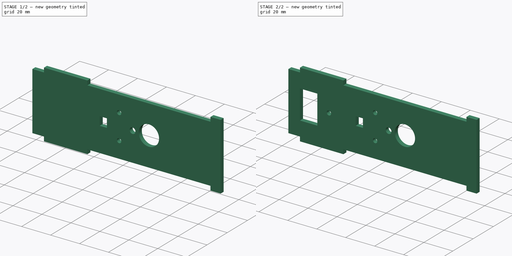
[diagram: build sequence overview — one tinted view per stage of 2, left to right]
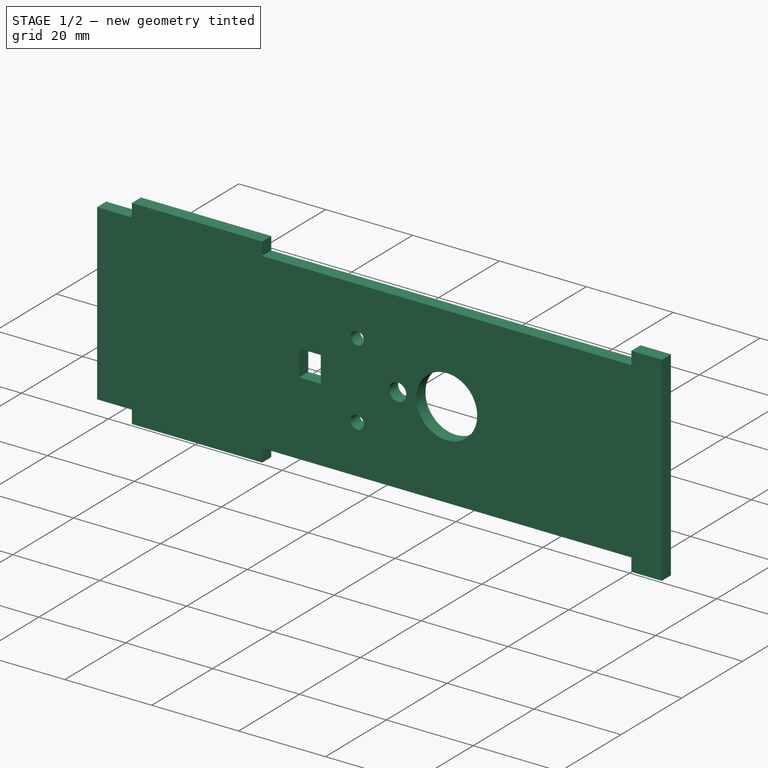
[diagram: stage 1 of 2 — iso view after this stage's code; geometry added in this stage tinted green]
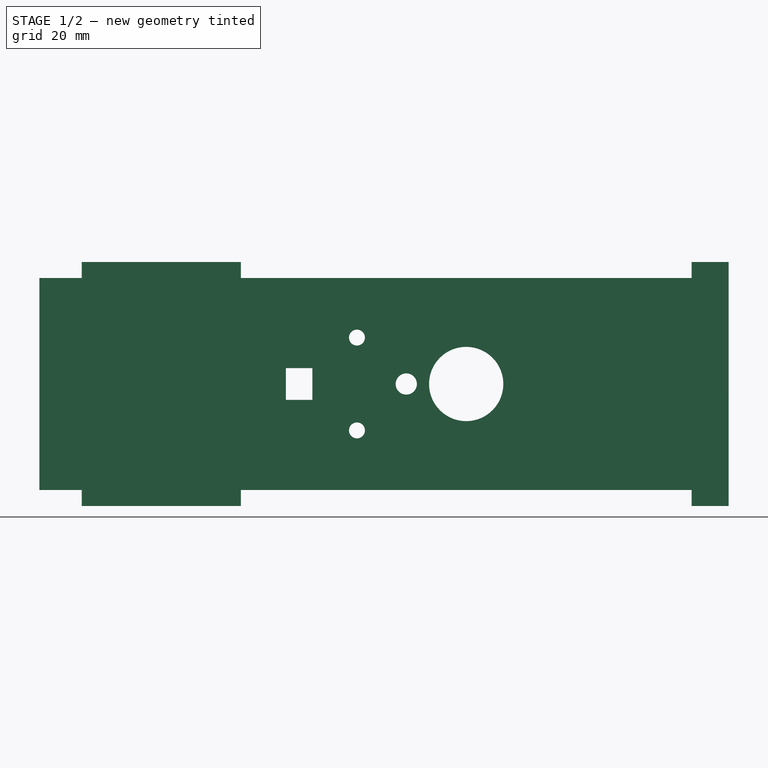
[diagram: stage 1 of 2 — front view after this stage's code; geometry added in this stage tinted green]
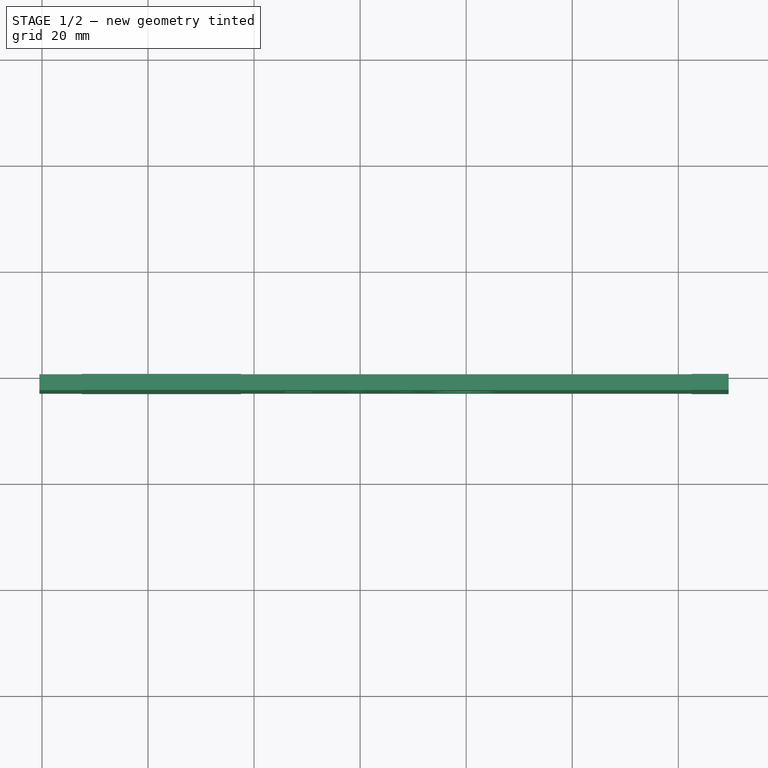
[diagram: stage 1 of 2 — top view after this stage's code; geometry added in this stage tinted green]
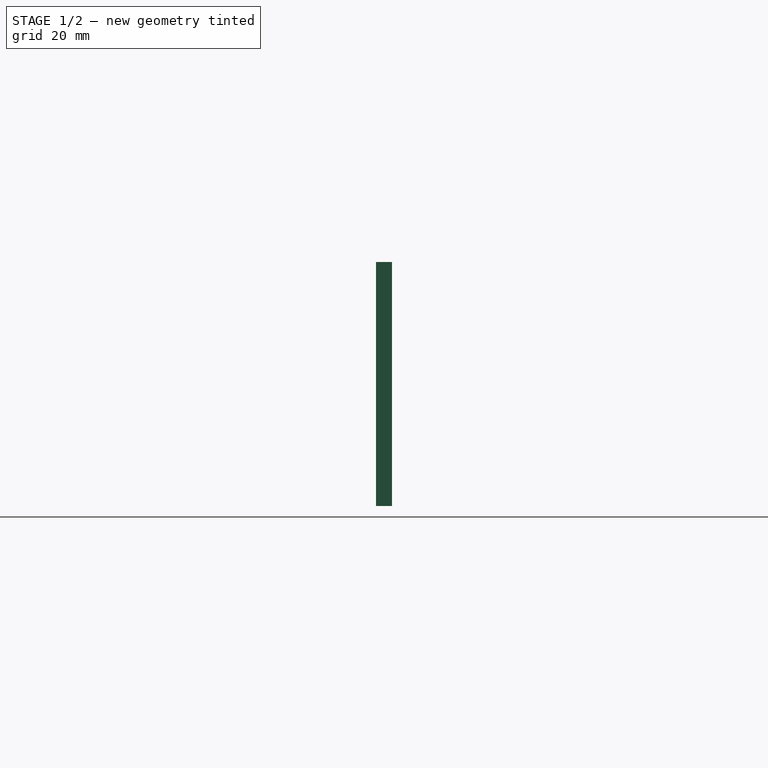
[diagram: stage 1 of 2 — right view after this stage's code; geometry added in this stage tinted green]
FCSTD DOCUMENT  (FreeCAD 0.15R4671 (Git))
Label: EduRoMAALaterales
License: CreativeCommons Attribution-ShareAlike
LicenseURL: http://creativecommons.org/licenses/by-sa/4.0/
objects: Sketcher::SketchObject×3, PartDesign::Pocket×2, Part::Part2DObjectPython×2, PartDesign::Pad×1, Part::FeaturePython×1
note: 12 computed .brp shape members not serialized (recipe doc carries the construction recipe); baked Part::Feature solids carry a one-line shape summary decoded from their .brp

FEATURE [Sketcher::SketchObject] Sketch012  label="SiluetaLateralSketch"
  Placement = pos=(0,0,0) rot=(1,0,0;1.5708rad)
  sketch-geometry (16):
    g0: LineSegment StartX=-80.5 StartY=43 StartZ=0 EndX=-72.5 EndY=43 EndZ=0
    g1: LineSegment StartX=-72.5 StartY=43 StartZ=0 EndX=-72.5 EndY=46 EndZ=0
    g2: LineSegment StartX=-72.5 StartY=46 StartZ=0 EndX=-42.5 EndY=46 EndZ=0
    g3: LineSegment StartX=-42.5 StartY=46 StartZ=0 EndX=-42.5 EndY=43 EndZ=0
    g4: LineSegment StartX=-42.5 StartY=43 StartZ=0 EndX=42.5 EndY=43 EndZ=0
    g5: LineSegment StartX=42.5 StartY=43 StartZ=0 EndX=42.5 EndY=46 EndZ=0
    g6: LineSegment StartX=42.5 StartY=46 StartZ=0 EndX=49.5 EndY=46 EndZ=0
    g7: LineSegment StartX=49.5 StartY=46 StartZ=0 EndX=49.5 EndY=0 EndZ=0
    g8: LineSegment StartX=49.5 StartY=0 StartZ=0 EndX=42.5 EndY=0 EndZ=0
    g9: LineSegment StartX=42.5 StartY=0 StartZ=0 EndX=42.5 EndY=3 EndZ=0
    g10: LineSegment StartX=42.5 StartY=3 StartZ=0 EndX=-42.5 EndY=3 EndZ=0
    g11: LineSegment StartX=-42.5 StartY=3 StartZ=0 EndX=-42.5 EndY=0 EndZ=0
    g12: LineSegment StartX=-42.5 StartY=0 StartZ=0 EndX=-72.5 EndY=0 EndZ=0
    g13: LineSegment StartX=-72.5 StartY=0 StartZ=0 EndX=-72.5 EndY=3 EndZ=0
    g14: LineSegment StartX=-72.5 StartY=3 StartZ=0 EndX=-80.5 EndY=3 EndZ=0
    g15: LineSegment StartX=-80.5 StartY=3 StartZ=0 EndX=-80.5 EndY=43 EndZ=0
  constraints (48):
    c: Coincident(g0,g1)
    c: Coincident(g1,g2)
    c: Horizontal(g2)
    c: Coincident(g2,g3)
    c: Coincident(g3,g4)
    c: Horizontal(g4)
    c: Coincident(g4,g5)
    c: Coincident(g5,g6)
    c: Horizontal(g6)
    c: Coincident(g6,g7)
    c: Vertical(g7)
    c: Coincident(g7,g8)
    c: Horizontal(g8)
    c: Coincident(g8,g9)
    c: Coincident(g9,g10)
    c: Horizontal(g10)
    c: Coincident(g10,g11)
    c: Coincident(g11,g12)
    c: Horizontal(g12)
    c: Coincident(g12,g13)
    c: Coincident(g13,g14)
    c: Horizontal(g14)
    c: Coincident(g14,g15)
    c: Coincident(g15,g0)
    c: Vertical(g15)
    c: Vertical(g1)
    c: Vertical(g13)
    c: Vertical(g3)
    c: Equal(g1,g3)
    c: Equal(g3,g13)
    c: Equal(g13,g11)
    c: Equal(g11,g5)
    c: Equal(g5,g9)
    c: Horizontal(g0)
    c: Vertical(g5)
    c: Vertical(g11)
    c: DistanceY(g15) = 40
    c: DistanceY(g7) = -46
    c: Vertical(g9)
    c: Equal(g12,g2)
    c: DistanceX(g12) = -30
    c: Equal(g6,g8)
    c: DistanceX(g8) = -7
    c: Equal(g10,g4)
    c: DistanceX(g10) = -85
    c: DistanceX(g14) = -8
    c: PointOnObject(g12,g-1)
    c: Symmetric(g3,g4,g-2)
FEATURE [PartDesign::Pad] Pad003  label="LadoDerechoRelleno"
  Length = 3
  Length2 = 100
  Placement = pos=(0,0,0) rot=(1,0,0;1.5708rad)
  Sketch = -> Sketch012
  Type = 0
FEATURE [Sketcher::SketchObject] Sketch013  label="SoporteMotorSketch"
  Placement = pos=(0,-3,0) rot=(1,0,0;1.5708rad)
  Support = -> Pad003 [Face18]
  sketch-geometry (10):
    g0: Circle CenterX=0 CenterY=23 CenterZ=0 NormalX=0 NormalY=0 NormalZ=1 Radius=7
    g1: Circle CenterX=-11.3 CenterY=23 CenterZ=0 NormalX=0 NormalY=0 NormalZ=1 Radius=2
    g2: Circle CenterX=-20.6 CenterY=31.75 CenterZ=0 NormalX=0 NormalY=0 NormalZ=1 Radius=1.5
    g3: Circle CenterX=-20.6 CenterY=14.25 CenterZ=0 NormalX=0 NormalY=0 NormalZ=1 Radius=1.5
    g4: LineSegment StartX=-34 StartY=26 StartZ=0 EndX=-29 EndY=26 EndZ=0
    g5: LineSegment StartX=-29 StartY=26 StartZ=0 EndX=-29 EndY=20 EndZ=0
    g6: LineSegment StartX=-29 StartY=20 StartZ=0 EndX=-34 EndY=20 EndZ=0
    g7: LineSegment StartX=-34 StartY=20 StartZ=0 EndX=-34 EndY=26 EndZ=0
    g8: LineSegment [constr] StartX=-11.3 StartY=23 StartZ=0 EndX=0 EndY=23 EndZ=0
    g9: LineSegment [constr] StartX=-20.6 StartY=31.75 StartZ=0 EndX=-20.6 EndY=14.25 EndZ=0
  constraints (27):
    c: Coincident(g4,g5)
    c: Coincident(g5,g6)
    c: Coincident(g6,g7)
    c: Coincident(g7,g4)
    c: Horizontal(g4)
    c: Horizontal(g6)
    c: Vertical(g5)
    c: Vertical(g7)
    c: DistanceX(g4) = 5
    c: DistanceY(g7) = 6
    c: Coincident(g8,g1)
    c: Coincident(g8,g0)
    c: Coincident(g9,g2)
    c: Coincident(g9,g3)
    c: Vertical(g9)
    c: Equal(g2,g3)
    c: Radius(g0) = 7
    c: Radius(g1) = 2
    c: Radius(g2) = 1.5
    c: Symmetric(g4,g5,g8)
    c: Symmetric(g2,g3,g8)
    c: DistanceX(g8) = 11.3
    c: DistanceY(g9) = -17.5
    c: DistanceX(g1,g3) = -9.3
    c: DistanceX(g5,g3) = 8.4
    c: PointOnObject(g0,g-2)
    c: DistanceY(g-1,g0) = 23
FEATURE [PartDesign::Pocket] Pocket009  label="LadoDerechoMotor"
  Length = 5
  Placement = pos=(0,0,0) rot=(1,0,0;1.5708rad)
  Sketch = -> Sketch013
  Type = 1
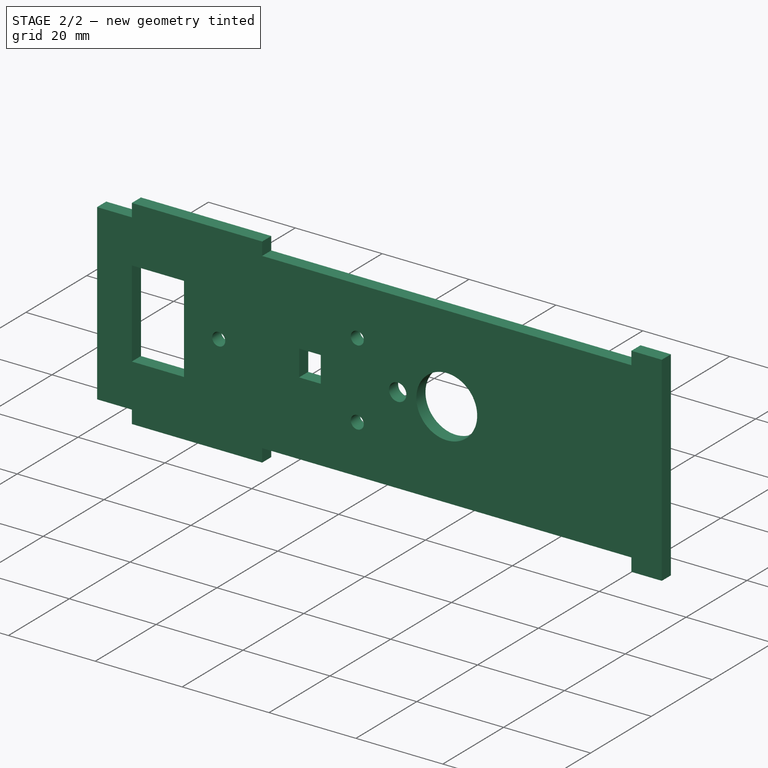
[diagram: stage 2 of 2 — iso view after this stage's code; geometry added in this stage tinted green]
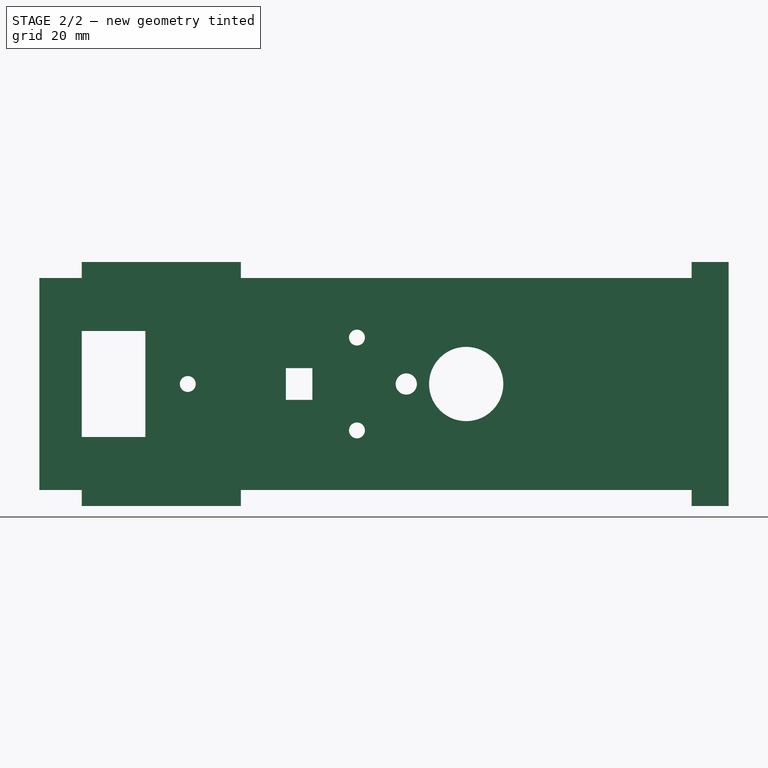
[diagram: stage 2 of 2 — front view after this stage's code; geometry added in this stage tinted green]
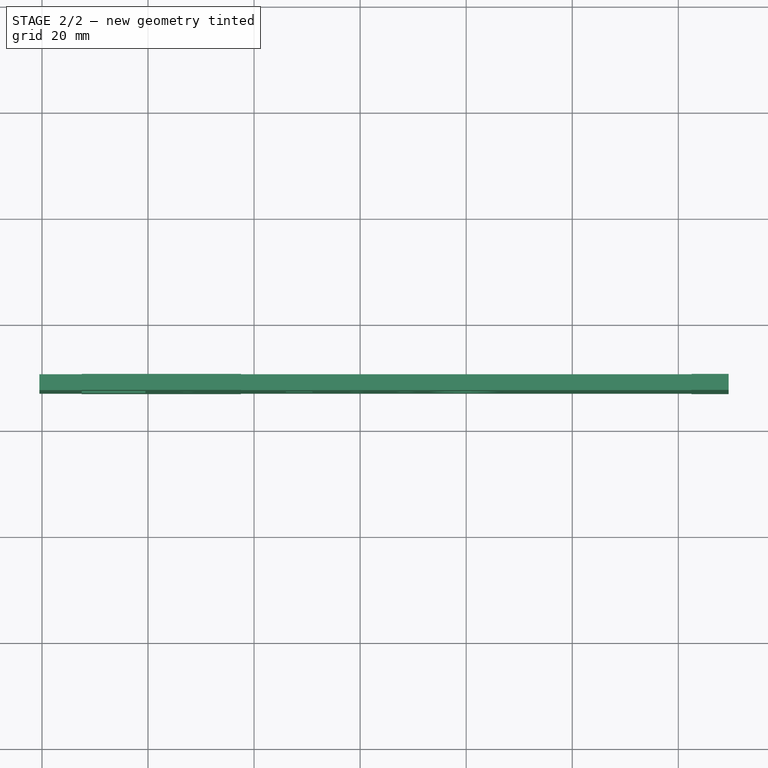
[diagram: stage 2 of 2 — top view after this stage's code; geometry added in this stage tinted green]
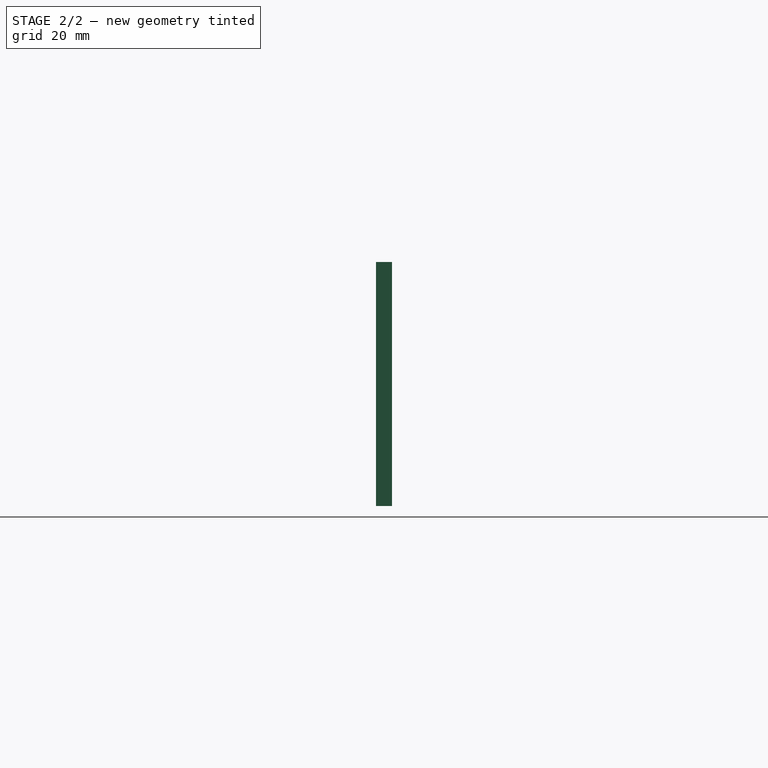
[diagram: stage 2 of 2 — right view after this stage's code; geometry added in this stage tinted green]
FEATURE [Part::FeaturePython] Clone  label="LadoIzquierdoClon"  # Draft clone (typed FeaturePython)
  Objects = -> [Pocket009]
  Placement = pos=(0,50,0) rot=(1,0,0;1.5708rad)
  Scale = (1,1,1)
FEATURE [Sketcher::SketchObject] Sketch015  label="LlaveLEDSketch"
  ExternalGeometry = -> [Clone]
  Placement = pos=(0,50,0) rot=(-1,0,0;1.5708rad)
  Support = -> Clone [Face4]
  sketch-geometry (6):
    g0: LineSegment [constr] StartX=-11.3 StartY=-23 StartZ=0 EndX=0 EndY=-23 EndZ=0
    g1: LineSegment StartX=-60.5 StartY=-33 StartZ=0 EndX=-72.5 EndY=-33 EndZ=0
    g2: LineSegment StartX=-72.5 StartY=-33 StartZ=0 EndX=-72.5 EndY=-13 EndZ=0
    g3: LineSegment StartX=-72.5 StartY=-13 StartZ=0 EndX=-60.5 EndY=-13 EndZ=0
    g4: LineSegment StartX=-60.5 StartY=-13 StartZ=0 EndX=-60.5 EndY=-33 EndZ=0
    g5: Circle CenterX=-52.5 CenterY=-23 CenterZ=0 NormalX=0 NormalY=0 NormalZ=1 Radius=1.5
  constraints (17):
    c: Coincident(g0,g-3)
    c: Coincident(g0,g-4)
    c: Coincident(g1,g2)
    c: Coincident(g2,g3)
    c: Coincident(g3,g4)
    c: Coincident(g4,g1)
    c: Horizontal(g1)
    c: Horizontal(g3)
    c: Vertical(g2)
    c: Vertical(g4)
    c: Symmetric(g1,g3,g0)
    c: PointOnObject(g5,g0)
    c: DistanceY(g2) = 20
    c: DistanceX(g3) = 12
    c: Radius(g5) = 1.5
    c: DistanceX(g5,g3) = -8
    c: PointOnObject(g1,g-5)
FEATURE [PartDesign::Pocket] Pocket  label="LadoIzquierdoLlaveLED"
  Length = 5
  Placement = pos=(0,50,0) rot=(1,0,0;1.5708rad)
  Sketch = -> Sketch015
  Type = 1
FEATURE [Part::Part2DObjectPython] Shape2DView  label="LadoDerechoMotor_corte2D"  # Draft 2D object (typed FeaturePython)
  Base = -> Pocket009
  FaceNumbers = [4]
  HiddenLines = false
  Projection = (0,1,0)
  ProjectionMode = 0
  SegmentLength = 0.05
  Tessellation = false
FEATURE [Part::Part2DObjectPython] Shape2DView001  label="LadoIzquierdoLlaveLED_corte2D"  # Draft 2D object (typed FeaturePython)
  Base = -> Pocket
  HiddenLines = false
  Placement = pos=(-50,0,0) rot=(0,0,1;0rad)
  Projection = (0,1,0)
  ProjectionMode = 0
  SegmentLength = 0.05
  Tessellation = false
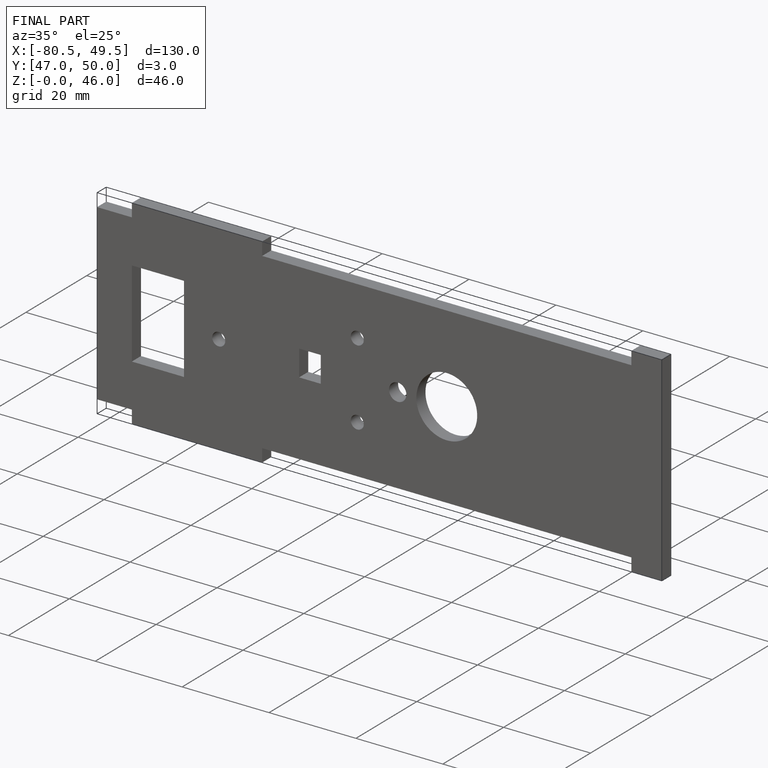
[diagram: finished part — iso view with bounding-box wireframe]
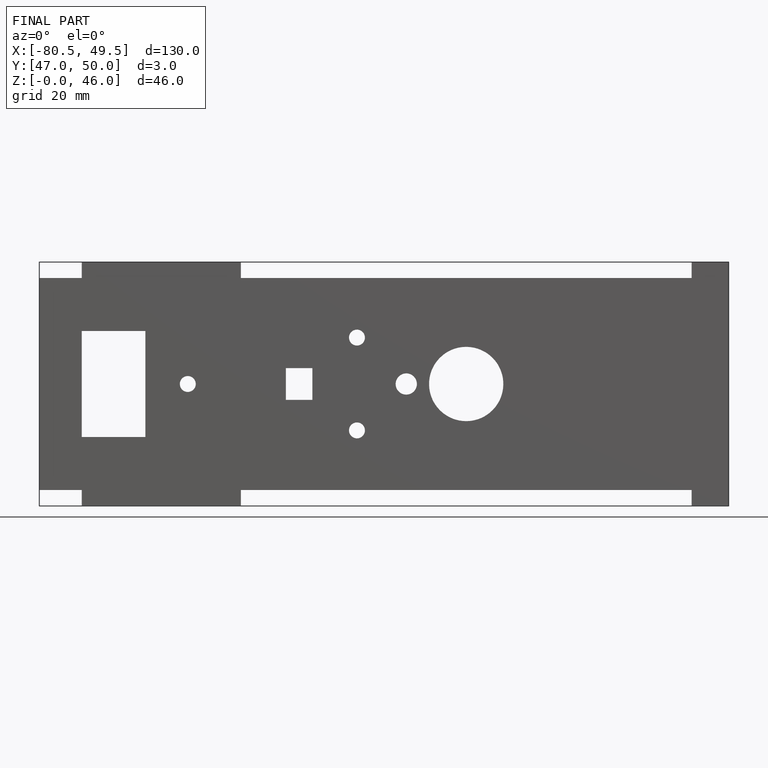
[diagram: finished part — front view with bounding-box wireframe]
